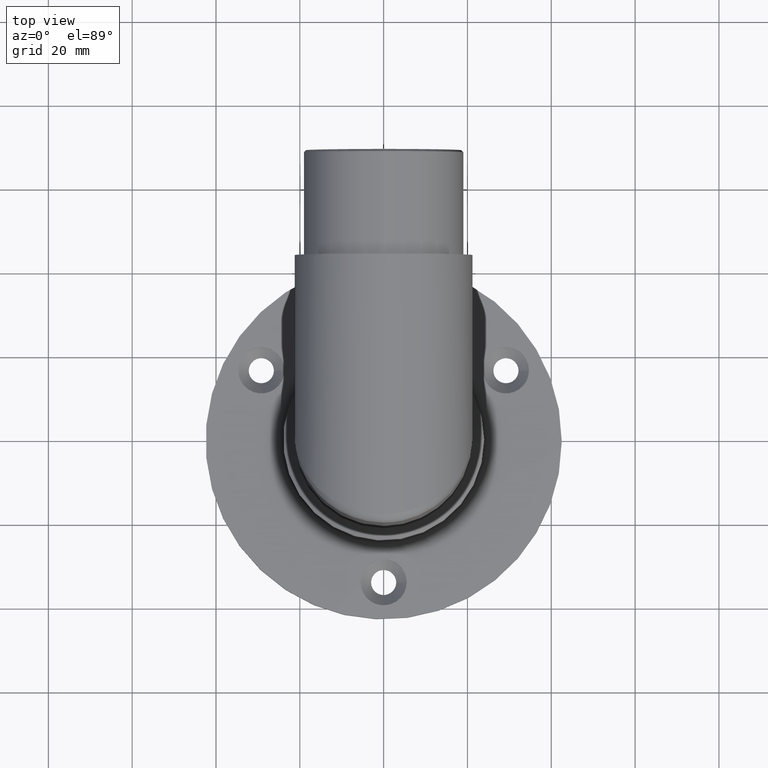
[diagram: clean part render]
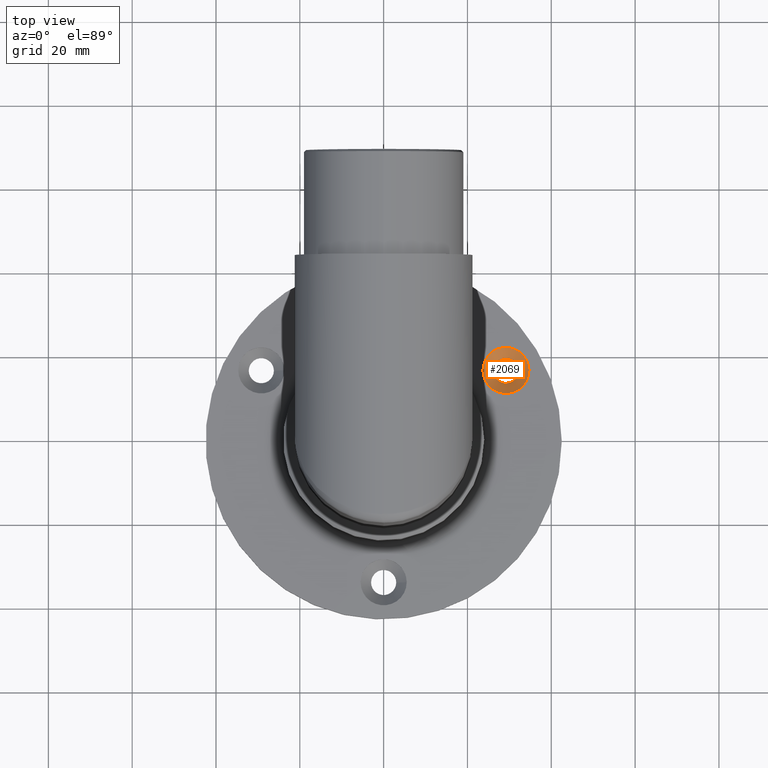
[diagram: same view with one face highlighted and labeled with its STEP entity id]
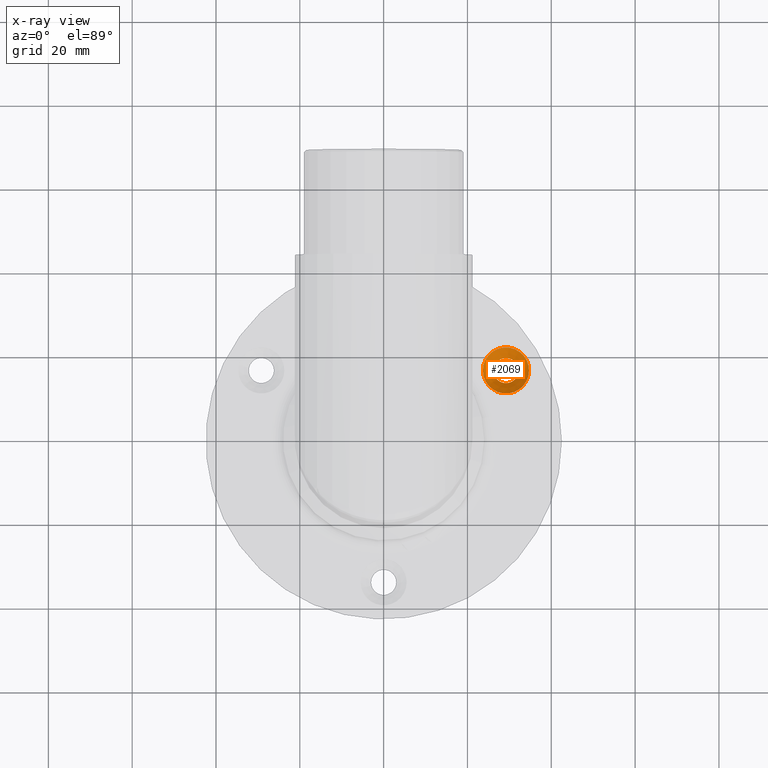
[diagram: x-ray of the same camera — body ghosted, the highlighted face saturated]
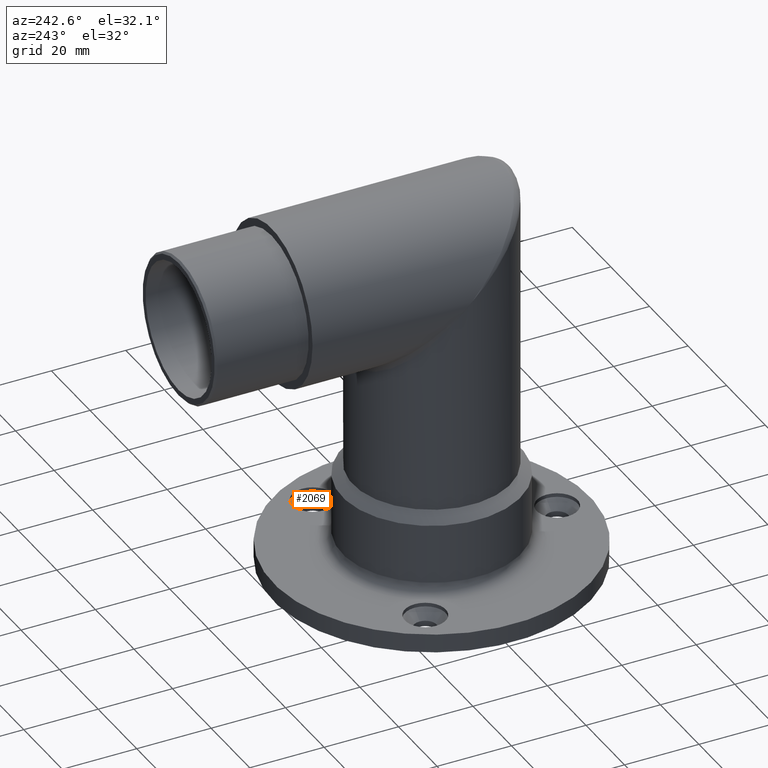
[diagram: same view with one face highlighted and labeled with its STEP entity id]
A machine part, top view. The second image highlights one B-rep face of the part: STEP entity #2069.
The next image is the same camera in x-ray: the body ghosted, the highlighted face saturated — about 0% of this face is hidden behind the body in this view.
A second angle (auxiliary view) of the same face is appended — the face is thin or edge-on in the first view.
In plain terms, the highlighted conical surface has half-angle 45 deg.
Its self-contained STEP definition (entity closure, byte-faithful):
#203 = CIRCLE ( 'NONE', #10176, 5.499999999999994671 ) ;
#262 = DIRECTION ( 'NONE',  ( -0.000000000000000000, -0.000000000000000000, 1.000000000000000000 ) ) ;
#974 = CONICAL_SURFACE ( 'NONE', #6081, 5.499999999999994671, 0.7853981633974482790 ) ;
#1312 = ORIENTED_EDGE ( 'NONE', *, *, #15465, .F. ) ;
#2069 = ADVANCED_FACE ( 'NONE', ( #11861, #2738 ), #974, .F. ) ;
#2738 = FACE_OUTER_BOUND ( 'NONE', #5814, .T. ) ;
#2756 = CARTESIAN_POINT ( 'NONE',  ( 29.18505610753550528, 16.85000000000014353, 3.999999999999999112 ) ) ;
#3374 = VERTEX_POINT ( 'NONE', #7932 ) ;
#5814 = EDGE_LOOP ( 'NONE', ( #7241 ) ) ;
#6081 = AXIS2_PLACEMENT_3D ( 'NONE', #2756, #262, #11548 ) ;
#6963 = DIRECTION ( 'NONE',  ( -0.000000000000000000, -0.000000000000000000, 1.000000000000000000 ) ) ;
#7241 = ORIENTED_EDGE ( 'NONE', *, *, #9739, .T. ) ;
#7932 = CARTESIAN_POINT ( 'NONE',  ( 34.68505610753550172, 16.85000000000014353, 3.999999999999999112 ) ) ;
#7970 = CARTESIAN_POINT ( 'NONE',  ( 29.18505610753550528, 16.85000000000014353, 3.999999999999999112 ) ) ;
#8277 = DIRECTION ( 'NONE',  ( 1.000000000000000000, 0.000000000000000000, 0.000000000000000000 ) ) ;
#9381 = CARTESIAN_POINT ( 'NONE',  ( 32.18505610753550172, 16.85000000000014353, 1.500000000000003997 ) ) ;
#9739 = EDGE_CURVE ( 'NONE', #3374, #3374, #203, .T. ) ;
#10176 = AXIS2_PLACEMENT_3D ( 'NONE', #7970, #14172, #14117 ) ;
#11114 = VERTEX_POINT ( 'NONE', #9381 ) ;
#11548 = DIRECTION ( 'NONE',  ( 1.000000000000000000, 0.000000000000000000, 0.000000000000000000 ) ) ;
#11861 = FACE_BOUND ( 'NONE', #14655, .T. ) ;
#14117 = DIRECTION ( 'NONE',  ( 1.000000000000000000, 0.000000000000000000, 0.000000000000000000 ) ) ;
#14172 = DIRECTION ( 'NONE',  ( -0.000000000000000000, -0.000000000000000000, 1.000000000000000000 ) ) ;
#14574 = CARTESIAN_POINT ( 'NONE',  ( 29.18505610753550528, 16.85000000000014353, 1.500000000000003997 ) ) ;
#14655 = EDGE_LOOP ( 'NONE', ( #1312 ) ) ;
#14749 = CIRCLE ( 'NONE', #15329, 2.999999999999999112 ) ;
#15329 = AXIS2_PLACEMENT_3D ( 'NONE', #14574, #6963, #8277 ) ;
#15465 = EDGE_CURVE ( 'NONE', #11114, #11114, #14749, .T. ) ;